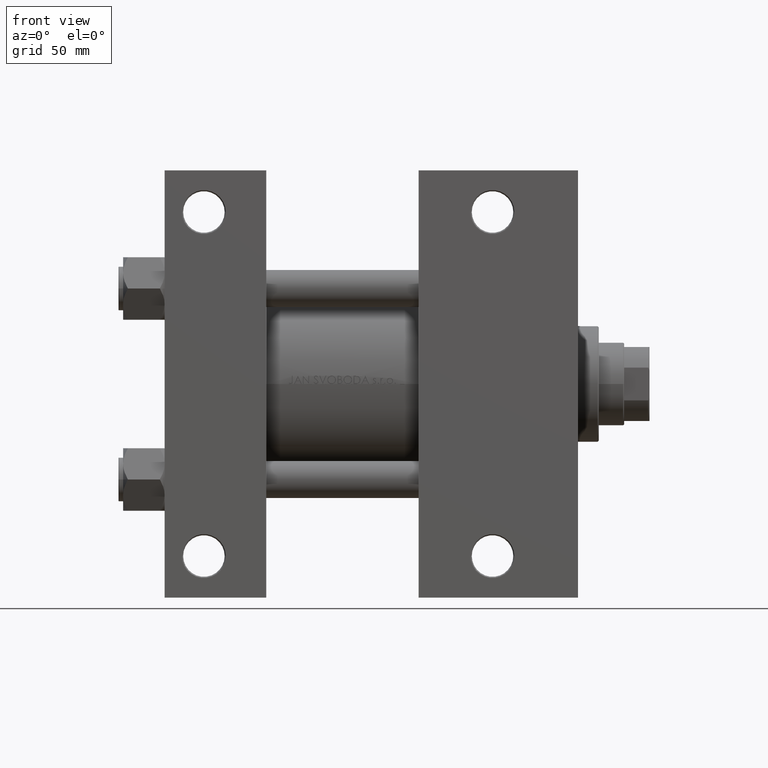
[diagram: clean part render]
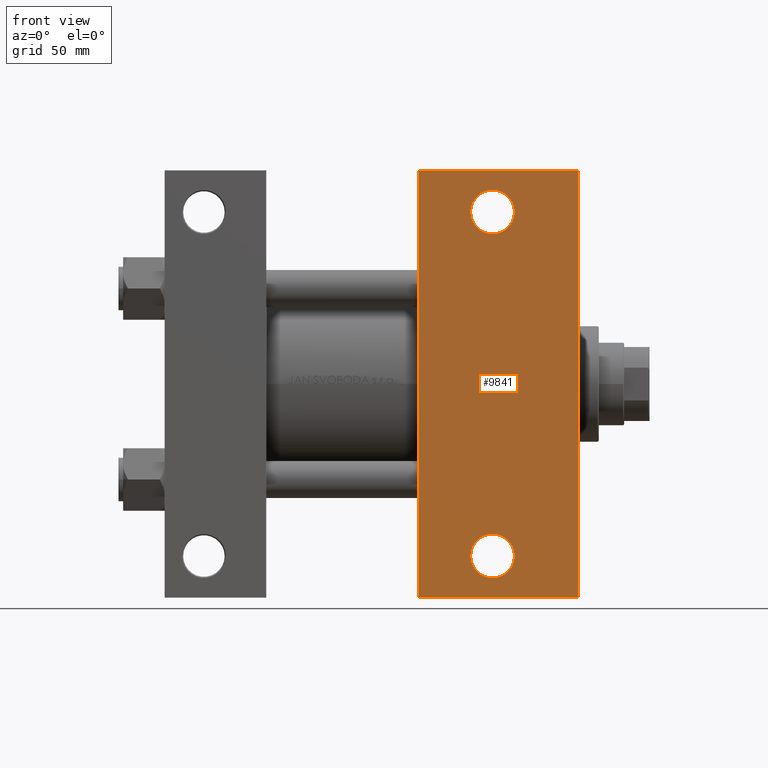
[diagram: same view with one face highlighted and labeled with its STEP entity id]
A machine part, front view. The second image highlights one B-rep face of the part: STEP entity #9841.
In plain terms, the highlighted planar face has unit normal (0, -1, -0).
Its self-contained STEP definition (entity closure, byte-faithful):
#37 = FACE_OUTER_BOUND ( 'NONE', #26172, .T. ) ;
#3037 = EDGE_CURVE ( 'NONE', #23036, #21388, #14552, .T. ) ;
#3259 = CARTESIAN_POINT ( 'NONE',  ( 179.0000000000000284, 92.49999999999997158, -57.49999999999997158 ) ) ;
#3685 = FACE_BOUND ( 'NONE', #14693, .T. ) ;
#4394 = DIRECTION ( 'NONE',  ( 1.000000000000000000, -4.022547190670857638E-16, 0.000000000000000000 ) ) ;
#7447 = CARTESIAN_POINT ( 'NONE',  ( 151.4994999999999834, -74.50000000000000000, -57.49999999999997868 ) ) ;
#7642 = CARTESIAN_POINT ( 'NONE',  ( 179.0000000000000000, 57.50000000000000000, -57.49999999999996447 ) ) ;
#8030 = VERTEX_POINT ( 'NONE', #44388 ) ;
#9034 = DIRECTION ( 'NONE',  ( -1.000000000000000000, -0.000000000000000000, -0.000000000000000000 ) ) ;
#9197 = DIRECTION ( 'NONE',  ( 0.000000000000000000, -1.000000000000000000, -1.206764157201257291E-16 ) ) ;
#9841 = ADVANCED_FACE ( 'NONE', ( #3685, #26005, #37 ), #10980, .T. ) ;
#9927 = LINE ( 'NONE', #42442, #27935 ) ;
#10980 = PLANE ( 'NONE',  #38927 ) ;
#12277 = VECTOR ( 'NONE', #15147, 1000.000000000000000 ) ;
#13501 = ORIENTED_EDGE ( 'NONE', *, *, #44135, .T. ) ;
#14390 = CIRCLE ( 'NONE', #32983, 9.499499999999994060 ) ;
#14552 = CIRCLE ( 'NONE', #39359, 9.499499999999965638 ) ;
#14693 = EDGE_LOOP ( 'NONE', ( #37274, #34704 ) ) ;
#15147 = DIRECTION ( 'NONE',  ( 0.000000000000000000, -1.000000000000000000, -1.206764157201257291E-16 ) ) ;
#15150 = CIRCLE ( 'NONE', #39164, 9.499499999999965638 ) ;
#16446 = DIRECTION ( 'NONE',  ( -0.000000000000000000, -1.206764157201257291E-16, 1.000000000000000000 ) ) ;
#19255 = LINE ( 'NONE', #7642, #12277 ) ;
#19529 = CARTESIAN_POINT ( 'NONE',  ( 142.0000000000000284, 74.49999999999998579, -57.49999999999996447 ) ) ;
#19688 = CARTESIAN_POINT ( 'NONE',  ( 110.0000000000000000, -92.50000000000000000, -57.49999999999997158 ) ) ;
#19906 = CARTESIAN_POINT ( 'NONE',  ( 110.0000000000000284, 92.50000000000000000, -57.49999999999997158 ) ) ;
#19978 = DIRECTION ( 'NONE',  ( 0.000000000000000000, 1.000000000000000000, 0.000000000000000000 ) ) ;
#20222 = CARTESIAN_POINT ( 'NONE',  ( 142.0000000000000284, -74.50000000000000000, -57.49999999999997868 ) ) ;
#20818 = EDGE_CURVE ( 'NONE', #21388, #23036, #15150, .T. ) ;
#21102 = EDGE_CURVE ( 'NONE', #8030, #37279, #14390, .T. ) ;
#21388 = VERTEX_POINT ( 'NONE', #7447 ) ;
#21403 = CARTESIAN_POINT ( 'NONE',  ( 110.0000000000000000, -92.50000000000000000, -57.49999999999997158 ) ) ;
#21618 = AXIS2_PLACEMENT_3D ( 'NONE', #19529, #34357, #38228 ) ;
#23036 = VERTEX_POINT ( 'NONE', #33279 ) ;
#23287 = CARTESIAN_POINT ( 'NONE',  ( 179.0000000000000000, -92.50000000000000000, -57.49999999999997158 ) ) ;
#23719 = CARTESIAN_POINT ( 'NONE',  ( 142.0000000000000284, 74.49999999999998579, -57.49999999999996447 ) ) ;
#24955 = EDGE_CURVE ( 'NONE', #42168, #43945, #42283, .T. ) ;
#26005 = FACE_BOUND ( 'NONE', #33362, .T. ) ;
#26172 = EDGE_LOOP ( 'NONE', ( #33808, #13501, #34352, #39429 ) ) ;
#26705 = DIRECTION ( 'NONE',  ( 0.000000000000000000, 1.000000000000000000, 1.206764157201257291E-16 ) ) ;
#27207 = LINE ( 'NONE', #19906, #36317 ) ;
#27935 = VECTOR ( 'NONE', #9197, 1000.000000000000000 ) ;
#29515 = VERTEX_POINT ( 'NONE', #33258 ) ;
#30426 = DIRECTION ( 'NONE',  ( -0.000000000000000000, -1.206764157201257291E-16, 1.000000000000000000 ) ) ;
#31022 = DIRECTION ( 'NONE',  ( 0.000000000000000000, 1.000000000000000000, 0.000000000000000000 ) ) ;
#32983 = AXIS2_PLACEMENT_3D ( 'NONE', #23719, #16446, #31022 ) ;
#33204 = EDGE_CURVE ( 'NONE', #37279, #8030, #34803, .T. ) ;
#33258 = CARTESIAN_POINT ( 'NONE',  ( 110.0000000000000284, 92.50000000000000000, -57.49999999999997158 ) ) ;
#33279 = CARTESIAN_POINT ( 'NONE',  ( 132.5005000000000450, -74.50000000000000000, -57.49999999999997868 ) ) ;
#33362 = EDGE_LOOP ( 'NONE', ( #36044, #46420 ) ) ;
#33516 = CARTESIAN_POINT ( 'NONE',  ( 151.4995000000000118, 74.49999999999998579, -57.49999999999996447 ) ) ;
#33808 = ORIENTED_EDGE ( 'NONE', *, *, #36478, .F. ) ;
#34352 = ORIENTED_EDGE ( 'NONE', *, *, #44425, .T. ) ;
#34357 = DIRECTION ( 'NONE',  ( -0.000000000000000000, -1.206764157201257291E-16, 1.000000000000000000 ) ) ;
#34704 = ORIENTED_EDGE ( 'NONE', *, *, #33204, .T. ) ;
#34803 = CIRCLE ( 'NONE', #21618, 9.499499999999994060 ) ;
#36044 = ORIENTED_EDGE ( 'NONE', *, *, #3037, .T. ) ;
#36068 = DIRECTION ( 'NONE',  ( -0.000000000000000000, -1.206764157201257291E-16, 1.000000000000000000 ) ) ;
#36317 = VECTOR ( 'NONE', #4394, 1000.000000000000000 ) ;
#36478 = EDGE_CURVE ( 'NONE', #29515, #43945, #9927, .T. ) ;
#36936 = DIRECTION ( 'NONE',  ( 0.000000000000000000, 1.206764157201257291E-16, -1.000000000000000000 ) ) ;
#37274 = ORIENTED_EDGE ( 'NONE', *, *, #21102, .T. ) ;
#37279 = VERTEX_POINT ( 'NONE', #33516 ) ;
#37640 = CARTESIAN_POINT ( 'NONE',  ( 179.0000000000000000, 57.50000000000000000, -57.49999999999996447 ) ) ;
#38228 = DIRECTION ( 'NONE',  ( 0.000000000000000000, 1.000000000000000000, 0.000000000000000000 ) ) ;
#38575 = VERTEX_POINT ( 'NONE', #3259 ) ;
#38927 = AXIS2_PLACEMENT_3D ( 'NONE', #37640, #36936, #26705 ) ;
#39164 = AXIS2_PLACEMENT_3D ( 'NONE', #39712, #36068, #43112 ) ;
#39359 = AXIS2_PLACEMENT_3D ( 'NONE', #20222, #30426, #19978 ) ;
#39429 = ORIENTED_EDGE ( 'NONE', *, *, #24955, .T. ) ;
#39712 = CARTESIAN_POINT ( 'NONE',  ( 142.0000000000000284, -74.50000000000000000, -57.49999999999997868 ) ) ;
#42168 = VERTEX_POINT ( 'NONE', #23287 ) ;
#42283 = LINE ( 'NONE', #19688, #43954 ) ;
#42442 = CARTESIAN_POINT ( 'NONE',  ( 110.0000000000000000, 57.50000000000000000, -57.49999999999996447 ) ) ;
#43112 = DIRECTION ( 'NONE',  ( 0.000000000000000000, 1.000000000000000000, 0.000000000000000000 ) ) ;
#43945 = VERTEX_POINT ( 'NONE', #21403 ) ;
#43954 = VECTOR ( 'NONE', #9034, 1000.000000000000000 ) ;
#44135 = EDGE_CURVE ( 'NONE', #29515, #38575, #27207, .T. ) ;
#44388 = CARTESIAN_POINT ( 'NONE',  ( 132.5005000000000166, 74.49999999999998579, -57.49999999999996447 ) ) ;
#44425 = EDGE_CURVE ( 'NONE', #38575, #42168, #19255, .T. ) ;
#46420 = ORIENTED_EDGE ( 'NONE', *, *, #20818, .T. ) ;